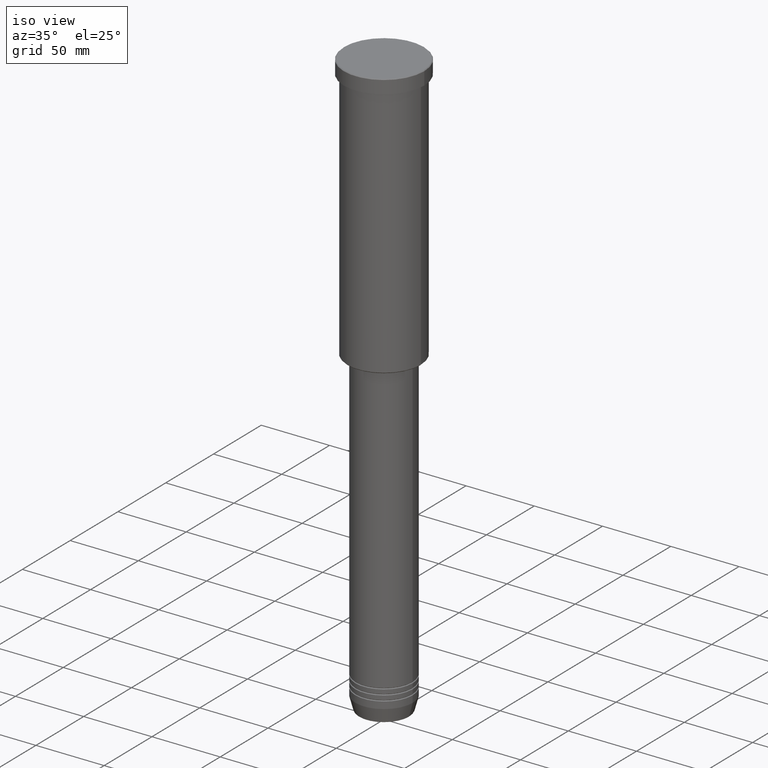
[diagram: clean part render]
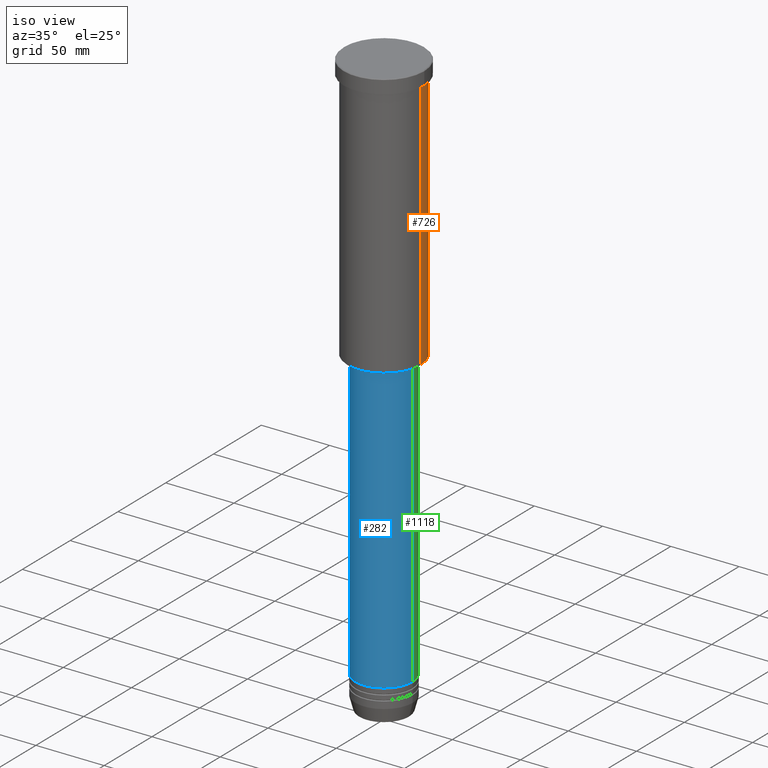
[diagram: same view with three faces highlighted in distinct colors, each labeled with its STEP entity id]
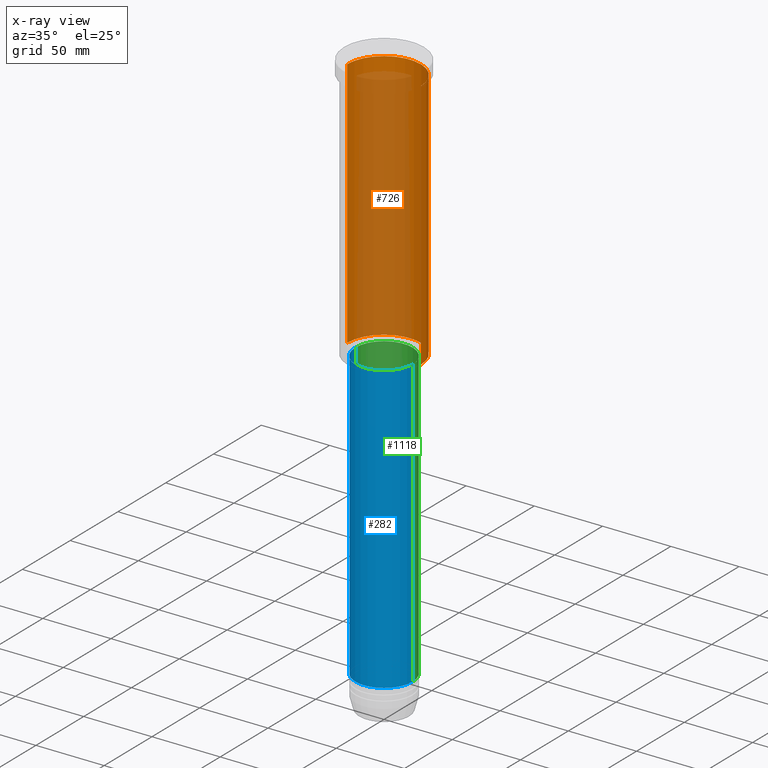
[diagram: x-ray of the same camera — body ghosted, the three highlighted faces saturated]
A machine part, iso view with three faces highlighted in distinct colors.
The next image is the same camera in x-ray (body ghosted, the three faces saturated) — at least one of them is partly hidden behind the body in this view.
Their STEP definitions:

[orange] entity #726 — the highlighted cylindrical surface (partial cylindrical patch) has radius 27 mm, axis along (-0, -0, 1).
#61 = VERTEX_POINT ( 'NONE', #943 ) ;
#128 = LINE ( 'NONE', #455, #646 ) ;
#140 = EDGE_CURVE ( 'NONE', #61, #444, #661, .T. ) ;
#242 = DIRECTION ( 'NONE',  ( -1.000000000000000000, 0.000000000000000000, 0.000000000000000000 ) ) ;
#310 = EDGE_CURVE ( 'NONE', #769, #61, #128, .T. ) ;
#407 = ORIENTED_EDGE ( 'NONE', *, *, #940, .T. ) ;
#417 = DIRECTION ( 'NONE',  ( -0.000000000000000000, -0.000000000000000000, 1.000000000000000000 ) ) ;
#423 = ORIENTED_EDGE ( 'NONE', *, *, #824, .T. ) ;
#444 = VERTEX_POINT ( 'NONE', #616 ) ;
#455 = CARTESIAN_POINT ( 'NONE',  ( 27.00000000000000355, 0.000000000000000000, 0.000000000000000000 ) ) ;
#461 = AXIS2_PLACEMENT_3D ( 'NONE', #1152, #417, #775 ) ;
#462 = AXIS2_PLACEMENT_3D ( 'NONE', #1075, #693, #242 ) ;
#508 = CYLINDRICAL_SURFACE ( 'NONE', #461, 27.00000000000000355 ) ;
#528 = ORIENTED_EDGE ( 'NONE', *, *, #310, .F. ) ;
#554 = CARTESIAN_POINT ( 'NONE',  ( 27.00000000000000355, 0.000000000000000000, -195.4999999999999716 ) ) ;
#555 = VECTOR ( 'NONE', #645, 1000.000000000000000 ) ;
#616 = CARTESIAN_POINT ( 'NONE',  ( -27.00000000000000355, 3.306546357697854128E-15, -10.99999999999999289 ) ) ;
#645 = DIRECTION ( 'NONE',  ( -0.000000000000000000, -0.000000000000000000, 1.000000000000000000 ) ) ;
#646 = VECTOR ( 'NONE', #1096, 1000.000000000000000 ) ;
#661 = CIRCLE ( 'NONE', #1156, 27.00000000000000355 ) ;
#684 = CIRCLE ( 'NONE', #462, 27.00000000000000355 ) ;
#693 = DIRECTION ( 'NONE',  ( -0.000000000000000000, -0.000000000000000000, 1.000000000000000000 ) ) ;
#720 = CARTESIAN_POINT ( 'NONE',  ( -27.00000000000000355, 3.306546357697854128E-15, 0.000000000000000000 ) ) ;
#726 = ADVANCED_FACE ( 'NONE', ( #875 ), #508, .T. ) ;
#732 = DIRECTION ( 'NONE',  ( -0.000000000000000000, -0.000000000000000000, 1.000000000000000000 ) ) ;
#769 = VERTEX_POINT ( 'NONE', #554 ) ;
#775 = DIRECTION ( 'NONE',  ( 1.000000000000000000, 0.000000000000000000, 0.000000000000000000 ) ) ;
#824 = EDGE_CURVE ( 'NONE', #769, #1059, #684, .T. ) ;
#875 = FACE_OUTER_BOUND ( 'NONE', #1170, .T. ) ;
#901 = CARTESIAN_POINT ( 'NONE',  ( -27.00000000000000355, 3.306546357697854128E-15, -195.4999999999999716 ) ) ;
#940 = EDGE_CURVE ( 'NONE', #1059, #444, #1078, .T. ) ;
#943 = CARTESIAN_POINT ( 'NONE',  ( 27.00000000000000355, 0.000000000000000000, -10.99999999999999289 ) ) ;
#1059 = VERTEX_POINT ( 'NONE', #901 ) ;
#1075 = CARTESIAN_POINT ( 'NONE',  ( 0.000000000000000000, 0.000000000000000000, -195.4999999999999716 ) ) ;
#1078 = LINE ( 'NONE', #720, #555 ) ;
#1096 = DIRECTION ( 'NONE',  ( -0.000000000000000000, -0.000000000000000000, 1.000000000000000000 ) ) ;
#1097 = DIRECTION ( 'NONE',  ( 1.000000000000000000, 0.000000000000000000, 0.000000000000000000 ) ) ;
#1098 = ORIENTED_EDGE ( 'NONE', *, *, #140, .F. ) ;
#1107 = CARTESIAN_POINT ( 'NONE',  ( 0.000000000000000000, 0.000000000000000000, -10.99999999999999289 ) ) ;
#1152 = CARTESIAN_POINT ( 'NONE',  ( 0.000000000000000000, 0.000000000000000000, 0.000000000000000000 ) ) ;
#1156 = AXIS2_PLACEMENT_3D ( 'NONE', #1107, #732, #1097 ) ;
#1170 = EDGE_LOOP ( 'NONE', ( #423, #407, #1098, #528 ) ) ;

[blue] entity #282 — the highlighted cylindrical surface (edge-blend (fillet) strip) has radius 21 mm, axis along (-0, -0, 1).
#33 = AXIS2_PLACEMENT_3D ( 'NONE', #733, #535, #728 ) ;
#48 = DIRECTION ( 'NONE',  ( -0.000000000000000000, -0.000000000000000000, 1.000000000000000000 ) ) ;
#58 = DIRECTION ( 'NONE',  ( 1.000000000000000000, 0.000000000000000000, 0.000000000000000000 ) ) ;
#65 = DIRECTION ( 'NONE',  ( -0.000000000000000000, -0.000000000000000000, 1.000000000000000000 ) ) ;
#72 = ORIENTED_EDGE ( 'NONE', *, *, #980, .T. ) ;
#85 = CARTESIAN_POINT ( 'NONE',  ( 0.000000000000000000, 0.000000000000000000, -406.9999999999999432 ) ) ;
#147 = VERTEX_POINT ( 'NONE', #278 ) ;
#176 = ORIENTED_EDGE ( 'NONE', *, *, #1052, .F. ) ;
#270 = DIRECTION ( 'NONE',  ( -0.000000000000000000, -0.000000000000000000, 1.000000000000000000 ) ) ;
#274 = DIRECTION ( 'NONE',  ( -0.000000000000000000, -0.000000000000000000, 1.000000000000000000 ) ) ;
#278 = CARTESIAN_POINT ( 'NONE',  ( 20.99999999999999645, 0.000000000000000000, -196.9999999999999147 ) ) ;
#279 = DIRECTION ( 'NONE',  ( 1.000000000000000000, 0.000000000000000000, 0.000000000000000000 ) ) ;
#282 = ADVANCED_FACE ( 'NONE', ( #690 ), #955, .T. ) ;
#388 = CARTESIAN_POINT ( 'NONE',  ( 21.00000000000000000, 0.000000000000000000, -406.9999999999999432 ) ) ;
#438 = VECTOR ( 'NONE', #65, 1000.000000000000000 ) ;
#446 = LINE ( 'NONE', #995, #611 ) ;
#475 = EDGE_CURVE ( 'NONE', #1179, #147, #885, .T. ) ;
#504 = CARTESIAN_POINT ( 'NONE',  ( 0.000000000000000000, 0.000000000000000000, 0.000000000000000000 ) ) ;
#535 = DIRECTION ( 'NONE',  ( -0.000000000000000000, -0.000000000000000000, 1.000000000000000000 ) ) ;
#542 = VERTEX_POINT ( 'NONE', #1114 ) ;
#611 = VECTOR ( 'NONE', #270, 1000.000000000000000 ) ;
#623 = VERTEX_POINT ( 'NONE', #979 ) ;
#690 = FACE_OUTER_BOUND ( 'NONE', #896, .T. ) ;
#728 = DIRECTION ( 'NONE',  ( 1.000000000000000000, 0.000000000000000000, 0.000000000000000000 ) ) ;
#733 = CARTESIAN_POINT ( 'NONE',  ( 0.000000000000000000, 0.000000000000000000, -196.9999999999999147 ) ) ;
#835 = ORIENTED_EDGE ( 'NONE', *, *, #475, .T. ) ;
#837 = AXIS2_PLACEMENT_3D ( 'NONE', #85, #274, #279 ) ;
#885 = LINE ( 'NONE', #981, #438 ) ;
#896 = EDGE_LOOP ( 'NONE', ( #176, #72, #835, #938 ) ) ;
#938 = ORIENTED_EDGE ( 'NONE', *, *, #942, .F. ) ;
#942 = EDGE_CURVE ( 'NONE', #542, #147, #953, .T. ) ;
#953 = CIRCLE ( 'NONE', #33, 20.99999999999999645 ) ;
#955 = CYLINDRICAL_SURFACE ( 'NONE', #1115, 20.99999999999999645 ) ;
#979 = CARTESIAN_POINT ( 'NONE',  ( -21.00000000000000000, 2.571758278209441661E-15, -406.9999999999999432 ) ) ;
#980 = EDGE_CURVE ( 'NONE', #623, #1179, #1160, .T. ) ;
#981 = CARTESIAN_POINT ( 'NONE',  ( 20.99999999999999645, 0.000000000000000000, 0.000000000000000000 ) ) ;
#995 = CARTESIAN_POINT ( 'NONE',  ( -20.99999999999999645, 2.571758278209441267E-15, 0.000000000000000000 ) ) ;
#1052 = EDGE_CURVE ( 'NONE', #623, #542, #446, .T. ) ;
#1114 = CARTESIAN_POINT ( 'NONE',  ( -20.99999999999999645, 2.571758278209441267E-15, -196.9999999999999147 ) ) ;
#1115 = AXIS2_PLACEMENT_3D ( 'NONE', #504, #48, #58 ) ;
#1160 = CIRCLE ( 'NONE', #837, 21.00000000000000000 ) ;
#1179 = VERTEX_POINT ( 'NONE', #388 ) ;

[green] entity #1118 — the highlighted cylindrical surface (edge-blend (fillet) strip) has radius 21 mm, axis along (-0, -0, 1).
#39 = ORIENTED_EDGE ( 'NONE', *, *, #350, .F. ) ;
#65 = DIRECTION ( 'NONE',  ( -0.000000000000000000, -0.000000000000000000, 1.000000000000000000 ) ) ;
#102 = ORIENTED_EDGE ( 'NONE', *, *, #1052, .T. ) ;
#147 = VERTEX_POINT ( 'NONE', #278 ) ;
#150 = AXIS2_PLACEMENT_3D ( 'NONE', #393, #921, #1016 ) ;
#166 = AXIS2_PLACEMENT_3D ( 'NONE', #463, #1014, #365 ) ;
#190 = DIRECTION ( 'NONE',  ( 1.000000000000000000, 0.000000000000000000, 0.000000000000000000 ) ) ;
#256 = ORIENTED_EDGE ( 'NONE', *, *, #991, .T. ) ;
#270 = DIRECTION ( 'NONE',  ( -0.000000000000000000, -0.000000000000000000, 1.000000000000000000 ) ) ;
#278 = CARTESIAN_POINT ( 'NONE',  ( 20.99999999999999645, 0.000000000000000000, -196.9999999999999147 ) ) ;
#327 = AXIS2_PLACEMENT_3D ( 'NONE', #370, #622, #190 ) ;
#350 = EDGE_CURVE ( 'NONE', #147, #542, #931, .T. ) ;
#365 = DIRECTION ( 'NONE',  ( 1.000000000000000000, 0.000000000000000000, 0.000000000000000000 ) ) ;
#370 = CARTESIAN_POINT ( 'NONE',  ( 0.000000000000000000, 0.000000000000000000, -406.9999999999999432 ) ) ;
#388 = CARTESIAN_POINT ( 'NONE',  ( 21.00000000000000000, 0.000000000000000000, -406.9999999999999432 ) ) ;
#393 = CARTESIAN_POINT ( 'NONE',  ( 0.000000000000000000, 0.000000000000000000, 0.000000000000000000 ) ) ;
#438 = VECTOR ( 'NONE', #65, 1000.000000000000000 ) ;
#446 = LINE ( 'NONE', #995, #611 ) ;
#463 = CARTESIAN_POINT ( 'NONE',  ( 0.000000000000000000, 0.000000000000000000, -196.9999999999999147 ) ) ;
#475 = EDGE_CURVE ( 'NONE', #1179, #147, #885, .T. ) ;
#493 = FACE_OUTER_BOUND ( 'NONE', #712, .T. ) ;
#542 = VERTEX_POINT ( 'NONE', #1114 ) ;
#580 = ORIENTED_EDGE ( 'NONE', *, *, #475, .F. ) ;
#611 = VECTOR ( 'NONE', #270, 1000.000000000000000 ) ;
#622 = DIRECTION ( 'NONE',  ( -0.000000000000000000, -0.000000000000000000, 1.000000000000000000 ) ) ;
#623 = VERTEX_POINT ( 'NONE', #979 ) ;
#712 = EDGE_LOOP ( 'NONE', ( #256, #102, #39, #580 ) ) ;
#742 = CIRCLE ( 'NONE', #327, 21.00000000000000000 ) ;
#853 = CYLINDRICAL_SURFACE ( 'NONE', #150, 20.99999999999999645 ) ;
#885 = LINE ( 'NONE', #981, #438 ) ;
#921 = DIRECTION ( 'NONE',  ( -0.000000000000000000, -0.000000000000000000, 1.000000000000000000 ) ) ;
#931 = CIRCLE ( 'NONE', #166, 20.99999999999999645 ) ;
#979 = CARTESIAN_POINT ( 'NONE',  ( -21.00000000000000000, 2.571758278209441661E-15, -406.9999999999999432 ) ) ;
#981 = CARTESIAN_POINT ( 'NONE',  ( 20.99999999999999645, 0.000000000000000000, 0.000000000000000000 ) ) ;
#991 = EDGE_CURVE ( 'NONE', #1179, #623, #742, .T. ) ;
#995 = CARTESIAN_POINT ( 'NONE',  ( -20.99999999999999645, 2.571758278209441267E-15, 0.000000000000000000 ) ) ;
#1014 = DIRECTION ( 'NONE',  ( -0.000000000000000000, -0.000000000000000000, 1.000000000000000000 ) ) ;
#1016 = DIRECTION ( 'NONE',  ( 1.000000000000000000, 0.000000000000000000, 0.000000000000000000 ) ) ;
#1052 = EDGE_CURVE ( 'NONE', #623, #542, #446, .T. ) ;
#1114 = CARTESIAN_POINT ( 'NONE',  ( -20.99999999999999645, 2.571758278209441267E-15, -196.9999999999999147 ) ) ;
#1118 = ADVANCED_FACE ( 'NONE', ( #493 ), #853, .T. ) ;
#1179 = VERTEX_POINT ( 'NONE', #388 ) ;